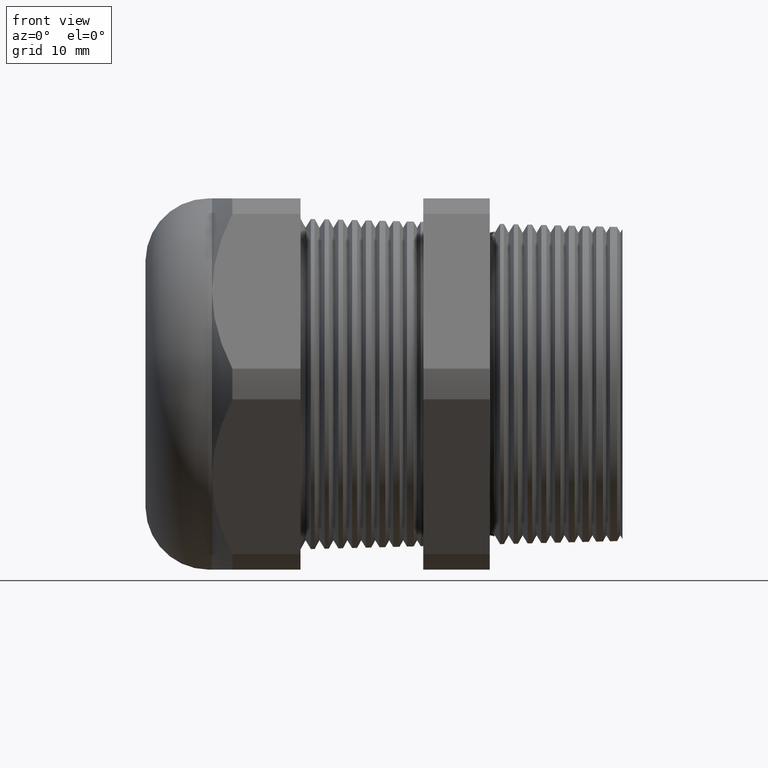
[diagram: clean part render]
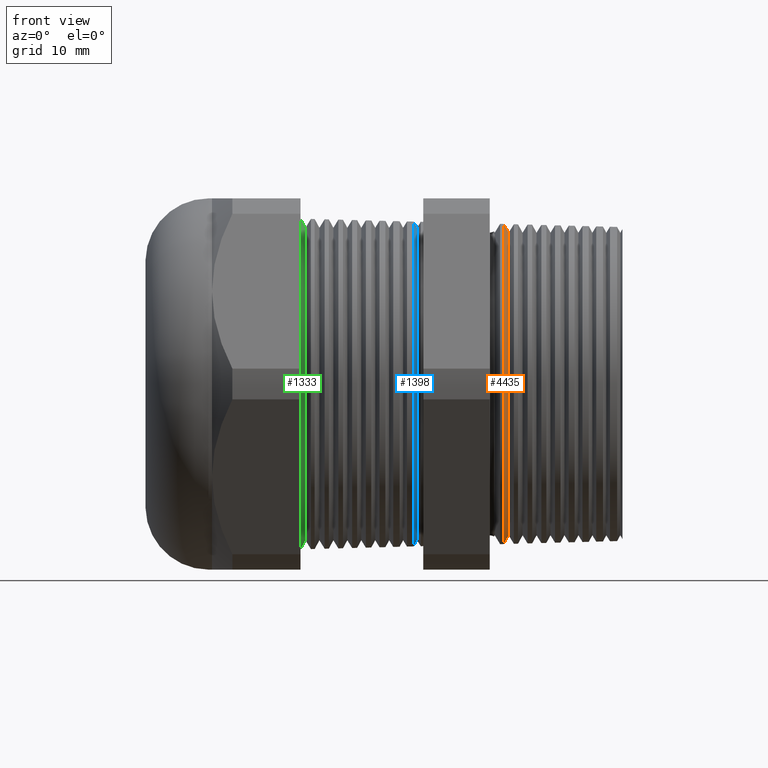
[diagram: same view with three faces highlighted in distinct colors, each labeled with its STEP entity id]
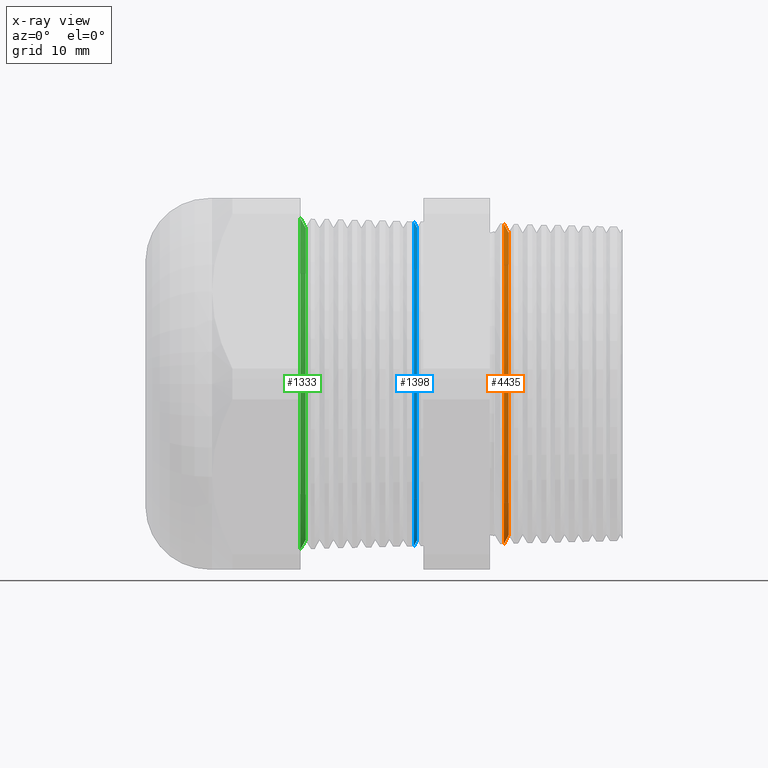
[diagram: x-ray of the same camera — body ghosted, the three highlighted faces saturated]
A machine part, front view with three faces highlighted in distinct colors.
The next image is the same camera in x-ray (body ghosted, the three faces saturated) — at least one of them is partly hidden behind the body in this view.
Their STEP definitions:

[orange] entity #4435 — the highlighted conical surface has half-angle 61.5 deg.
#356 = AXIS2_PLACEMENT_3D ( 'NONE', #419, #418, #417 ) ;
#357 = CIRCLE ( 'NONE', #356, 0.6723861976701363000 ) ;
#410 = DIRECTION ( 'NONE',  ( 0.0000000000000000000, 0.0000000000000000000, 1.000000000000000000 ) ) ;
#411 = DIRECTION ( 'NONE',  ( -1.000000000000000000, 0.0000000000000000000, 0.0000000000000000000 ) ) ;
#412 = CARTESIAN_POINT ( 'NONE',  ( -0.2480000000000000000, 0.0000000000000000000, 0.0000000000000000000 ) ) ;
#413 = AXIS2_PLACEMENT_3D ( 'NONE', #412, #411, #410 ) ;
#415 = CONICAL_SURFACE ( 'NONE', #413, 0.7129770213952431000, 1.073377489976515200 ) ;
#416 = FACE_OUTER_BOUND ( 'NONE', #4434, .T. ) ;
#417 = DIRECTION ( 'NONE',  ( 0.0000000000000000000, 0.0000000000000000000, -1.000000000000000000 ) ) ;
#418 = DIRECTION ( 'NONE',  ( 1.000000000000000000, 0.0000000000000000000, 0.0000000000000000000 ) ) ;
#419 = CARTESIAN_POINT ( 'NONE',  ( -0.2259609809054342600, 0.0000000000000000000, 0.0000000000000000000 ) ) ;
#841 = VERTEX_POINT ( 'NONE', #1830 ) ;
#843 = EDGE_CURVE ( 'NONE', #906, #841, #1829, .T. ) ;
#866 = EDGE_CURVE ( 'NONE', #905, #867, #1848, .T. ) ;
#867 = VERTEX_POINT ( 'NONE', #1839 ) ;
#905 = VERTEX_POINT ( 'NONE', #1955 ) ;
#906 = VERTEX_POINT ( 'NONE', #1954 ) ;
#1564 = EDGE_CURVE ( 'NONE', #841, #867, #2991, .T. ) ;
#1826 = DIRECTION ( 'NONE',  ( -0.4771587602596062400, 0.0000000000000000000, 0.8788171126619666000 ) ) ;
#1827 = VECTOR ( 'NONE', #1826, 39.37007874015748100 ) ;
#1828 = CARTESIAN_POINT ( 'NONE',  ( -0.2480000000000000000, 0.0000000000000000000, 0.7129770213952431000 ) ) ;
#1829 = LINE ( 'NONE', #1828, #1827 ) ;
#1830 = CARTESIAN_POINT ( 'NONE',  ( -0.2471057828914284800, 0.0000000000000000000, 0.7113300783588831800 ) ) ;
#1839 = CARTESIAN_POINT ( 'NONE',  ( -0.2471057828914284800, 8.713962287396846400E-017, -0.7113300783588831800 ) ) ;
#1840 = DIRECTION ( 'NONE',  ( -0.4771587602596062400, 1.076240564057396200E-016, -0.8788171126619666000 ) ) ;
#1841 = VECTOR ( 'NONE', #1840, 39.37007874015748100 ) ;
#1842 = CARTESIAN_POINT ( 'NONE',  ( -0.2480000000000000000, 8.731450271172985800E-017, -0.7129770213952431000 ) ) ;
#1848 = LINE ( 'NONE', #1842, #1841 ) ;
#1954 = CARTESIAN_POINT ( 'NONE',  ( -0.2259609809054342600, 0.0000000000000000000, 0.6723861976701363000 ) ) ;
#1955 = CARTESIAN_POINT ( 'NONE',  ( -0.2259609809054342600, 8.472818541835170300E-017, -0.6723861976701363000 ) ) ;
#2982 = DIRECTION ( 'NONE',  ( 0.0000000000000000000, 0.0000000000000000000, 1.000000000000000000 ) ) ;
#2983 = DIRECTION ( 'NONE',  ( 1.000000000000000000, 0.0000000000000000000, 0.0000000000000000000 ) ) ;
#2984 = CARTESIAN_POINT ( 'NONE',  ( -0.2471057828914284800, 0.0000000000000000000, 0.0000000000000000000 ) ) ;
#2985 = AXIS2_PLACEMENT_3D ( 'NONE', #2984, #2983, #2982 ) ;
#2991 = CIRCLE ( 'NONE', #2985, 0.7113300783588831800 ) ;
#4429 = ORIENTED_EDGE ( 'NONE', *, *, #1564, .T. ) ;
#4430 = ORIENTED_EDGE ( 'NONE', *, *, #843, .T. ) ;
#4431 = ORIENTED_EDGE ( 'NONE', *, *, #4432, .F. ) ;
#4432 = EDGE_CURVE ( 'NONE', #906, #905, #357, .T. ) ;
#4433 = ORIENTED_EDGE ( 'NONE', *, *, #866, .F. ) ;
#4434 = EDGE_LOOP ( 'NONE', ( #4433, #4431, #4430, #4429 ) ) ;
#4435 = ADVANCED_FACE ( 'NONE', ( #416 ), #415, .T. ) ;

[blue] entity #1398 — the highlighted conical surface has half-angle 61.5 deg.
#432 = DIRECTION ( 'NONE',  ( -0.4771587602596196200, 1.076240564057387000E-016, -0.8788171126619591700 ) ) ;
#433 = VECTOR ( 'NONE', #432, 39.37007874015748900 ) ;
#434 = CARTESIAN_POINT ( 'NONE',  ( -0.6550236220472440700, 9.001153973733042200E-017, -0.7349999999999996500 ) ) ;
#435 = LINE ( 'NONE', #434, #433 ) ;
#436 = CARTESIAN_POINT ( 'NONE',  ( -0.6478698851786719400, 8.844584046950623100E-017, -0.7218244557091199100 ) ) ;
#468 = CARTESIAN_POINT ( 'NONE',  ( -0.6329846029526777800, 0.0000000000000000000, 0.6944091762748931800 ) ) ;
#514 = CARTESIAN_POINT ( 'NONE',  ( -0.6329846029526777800, 8.671929921270260200E-017, -0.6944091762748931800 ) ) ;
#1395 = EDGE_CURVE ( 'NONE', #4022, #4466, #2788, .T. ) ;
#1398 = ADVANCED_FACE ( 'NONE', ( #2783 ), #2782, .T. ) ;
#1399 = EDGE_LOOP ( 'NONE', ( #1400, #1401, #1403, #1459 ) ) ;
#1400 = ORIENTED_EDGE ( 'NONE', *, *, #4467, .F. ) ;
#1401 = ORIENTED_EDGE ( 'NONE', *, *, #1402, .F. ) ;
#1402 = EDGE_CURVE ( 'NONE', #4483, #4491, #2776, .T. ) ;
#1403 = ORIENTED_EDGE ( 'NONE', *, *, #4023, .T. ) ;
#1459 = ORIENTED_EDGE ( 'NONE', *, *, #1395, .T. ) ;
#2773 = DIRECTION ( 'NONE',  ( 0.0000000000000000000, 0.0000000000000000000, -1.000000000000000000 ) ) ;
#2774 = DIRECTION ( 'NONE',  ( 1.000000000000000000, 0.0000000000000000000, 0.0000000000000000000 ) ) ;
#2775 = AXIS2_PLACEMENT_3D ( 'NONE', #2781, #2774, #2773 ) ;
#2776 = CIRCLE ( 'NONE', #2775, 0.6944091762748931800 ) ;
#2777 = DIRECTION ( 'NONE',  ( 0.0000000000000000000, 0.0000000000000000000, 1.000000000000000000 ) ) ;
#2778 = DIRECTION ( 'NONE',  ( -1.000000000000000000, 0.0000000000000000000, 0.0000000000000000000 ) ) ;
#2779 = CARTESIAN_POINT ( 'NONE',  ( -0.6550236220472440700, 0.0000000000000000000, 0.0000000000000000000 ) ) ;
#2780 = AXIS2_PLACEMENT_3D ( 'NONE', #2779, #2778, #2777 ) ;
#2781 = CARTESIAN_POINT ( 'NONE',  ( -0.6329846029526777800, 0.0000000000000000000, 0.0000000000000000000 ) ) ;
#2782 = CONICAL_SURFACE ( 'NONE', #2780, 0.7349999999999996500, 1.073377489976499800 ) ;
#2783 = FACE_OUTER_BOUND ( 'NONE', #1399, .T. ) ;
#2784 = DIRECTION ( 'NONE',  ( 0.0000000000000000000, 0.0000000000000000000, 1.000000000000000000 ) ) ;
#2785 = DIRECTION ( 'NONE',  ( 1.000000000000000000, 0.0000000000000000000, 0.0000000000000000000 ) ) ;
#2786 = CARTESIAN_POINT ( 'NONE',  ( -0.6478698851786719400, 0.0000000000000000000, 0.0000000000000000000 ) ) ;
#2787 = AXIS2_PLACEMENT_3D ( 'NONE', #2786, #2785, #2784 ) ;
#2788 = CIRCLE ( 'NONE', #2787, 0.7218244557091199100 ) ;
#3426 = DIRECTION ( 'NONE',  ( -0.4771587602596196200, 0.0000000000000000000, 0.8788171126619591700 ) ) ;
#3427 = VECTOR ( 'NONE', #3426, 39.37007874015748900 ) ;
#3428 = CARTESIAN_POINT ( 'NONE',  ( -0.6550236220472440700, 0.0000000000000000000, 0.7349999999999996500 ) ) ;
#3429 = LINE ( 'NONE', #3428, #3427 ) ;
#3430 = CARTESIAN_POINT ( 'NONE',  ( -0.6478698851786719400, 0.0000000000000000000, 0.7218244557091199100 ) ) ;
#4022 = VERTEX_POINT ( 'NONE', #3430 ) ;
#4023 = EDGE_CURVE ( 'NONE', #4483, #4022, #3429, .T. ) ;
#4466 = VERTEX_POINT ( 'NONE', #436 ) ;
#4467 = EDGE_CURVE ( 'NONE', #4491, #4466, #435, .T. ) ;
#4483 = VERTEX_POINT ( 'NONE', #468 ) ;
#4491 = VERTEX_POINT ( 'NONE', #514 ) ;

[green] entity #1333 — the highlighted conical surface has half-angle 61.5 deg.
#520 = DIRECTION ( 'NONE',  ( -0.4771587602596196200, 1.076240564057387000E-016, -0.8788171126619591700 ) ) ;
#521 = VECTOR ( 'NONE', #520, 39.37007874015748900 ) ;
#522 = CARTESIAN_POINT ( 'NONE',  ( -1.151023622047244100, 9.001153973733042200E-017, -0.7349999999999996500 ) ) ;
#523 = LINE ( 'NONE', #522, #521 ) ;
#537 = CARTESIAN_POINT ( 'NONE',  ( -1.128984602952677800, 0.0000000000000000000, -0.6944091762748931800 ) ) ;
#545 = CARTESIAN_POINT ( 'NONE',  ( -1.128984602952677800, 8.745203495797659000E-017, 0.6944091762748931800 ) ) ;
#1278 = EDGE_CURVE ( 'NONE', #4517, #4521, #2579, .T. ) ;
#1280 = EDGE_LOOP ( 'NONE', ( #1334, #1335, #1336, #1337 ) ) ;
#1333 = ADVANCED_FACE ( 'NONE', ( #2691 ), #2686, .T. ) ;
#1334 = ORIENTED_EDGE ( 'NONE', *, *, #4531, .F. ) ;
#1335 = ORIENTED_EDGE ( 'NONE', *, *, #1278, .F. ) ;
#1336 = ORIENTED_EDGE ( 'NONE', *, *, #4216, .T. ) ;
#1337 = ORIENTED_EDGE ( 'NONE', *, *, #1338, .T. ) ;
#1338 = EDGE_CURVE ( 'NONE', #4218, #4237, #2680, .T. ) ;
#2571 = DIRECTION ( 'NONE',  ( 0.0000000000000000000, 0.0000000000000000000, -1.000000000000000000 ) ) ;
#2572 = DIRECTION ( 'NONE',  ( 1.000000000000000000, 0.0000000000000000000, 0.0000000000000000000 ) ) ;
#2573 = CARTESIAN_POINT ( 'NONE',  ( -1.128984602952677800, 0.0000000000000000000, 0.0000000000000000000 ) ) ;
#2574 = AXIS2_PLACEMENT_3D ( 'NONE', #2573, #2572, #2571 ) ;
#2579 = CIRCLE ( 'NONE', #2574, 0.6944091762748931800 ) ;
#2677 = DIRECTION ( 'NONE',  ( 0.0000000000000000000, 0.0000000000000000000, -1.000000000000000000 ) ) ;
#2678 = DIRECTION ( 'NONE',  ( 1.000000000000000000, 0.0000000000000000000, 0.0000000000000000000 ) ) ;
#2679 = AXIS2_PLACEMENT_3D ( 'NONE', #2685, #2678, #2677 ) ;
#2680 = CIRCLE ( 'NONE', #2679, 0.7349999999999996500 ) ;
#2681 = DIRECTION ( 'NONE',  ( 0.0000000000000000000, 0.0000000000000000000, 1.000000000000000000 ) ) ;
#2682 = DIRECTION ( 'NONE',  ( -1.000000000000000000, 0.0000000000000000000, 0.0000000000000000000 ) ) ;
#2683 = CARTESIAN_POINT ( 'NONE',  ( -1.151023622047244100, 0.0000000000000000000, 0.0000000000000000000 ) ) ;
#2684 = AXIS2_PLACEMENT_3D ( 'NONE', #2683, #2682, #2681 ) ;
#2685 = CARTESIAN_POINT ( 'NONE',  ( -1.151023622047244100, 0.0000000000000000000, 0.0000000000000000000 ) ) ;
#2686 = CONICAL_SURFACE ( 'NONE', #2684, 0.7349999999999996500, 1.073377489976499800 ) ;
#2691 = FACE_OUTER_BOUND ( 'NONE', #1280, .T. ) ;
#3777 = CARTESIAN_POINT ( 'NONE',  ( -1.151023622047244100, 0.0000000000000000000, 0.7349999999999996500 ) ) ;
#3778 = DIRECTION ( 'NONE',  ( -0.4771587602596196200, 0.0000000000000000000, 0.8788171126619591700 ) ) ;
#3779 = VECTOR ( 'NONE', #3778, 39.37007874015748900 ) ;
#3780 = CARTESIAN_POINT ( 'NONE',  ( -1.151023622047244100, 0.0000000000000000000, 0.7349999999999996500 ) ) ;
#3781 = LINE ( 'NONE', #3780, #3779 ) ;
#3805 = CARTESIAN_POINT ( 'NONE',  ( -1.151023622047244100, 9.001153973733042200E-017, -0.7349999999999996500 ) ) ;
#4216 = EDGE_CURVE ( 'NONE', #4517, #4218, #3781, .T. ) ;
#4218 = VERTEX_POINT ( 'NONE', #3777 ) ;
#4237 = VERTEX_POINT ( 'NONE', #3805 ) ;
#4517 = VERTEX_POINT ( 'NONE', #545 ) ;
#4521 = VERTEX_POINT ( 'NONE', #537 ) ;
#4531 = EDGE_CURVE ( 'NONE', #4521, #4237, #523, .T. ) ;